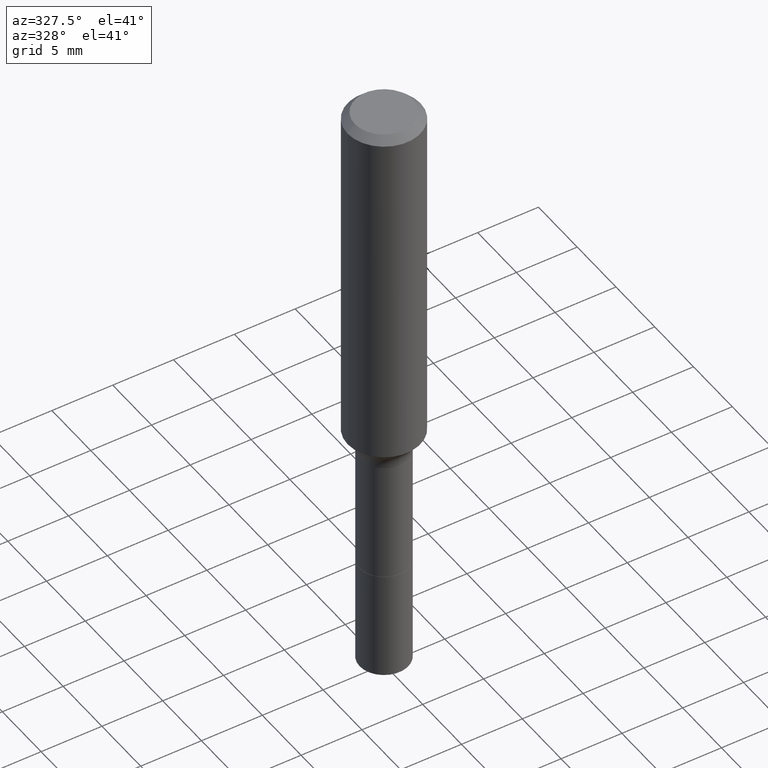
[diagram: clean part render]
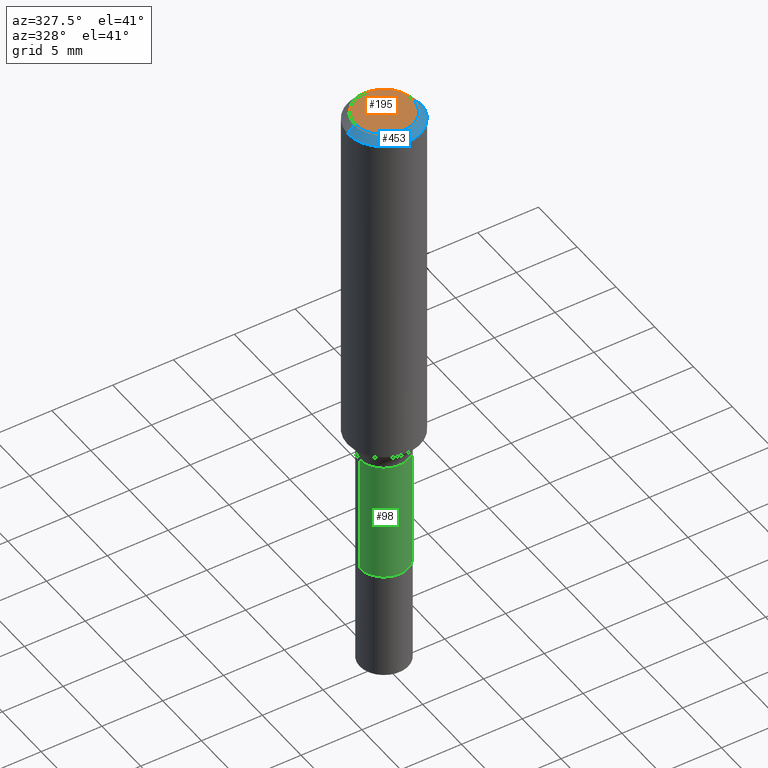
[diagram: same view with three faces highlighted in distinct colors, each labeled with its STEP entity id]
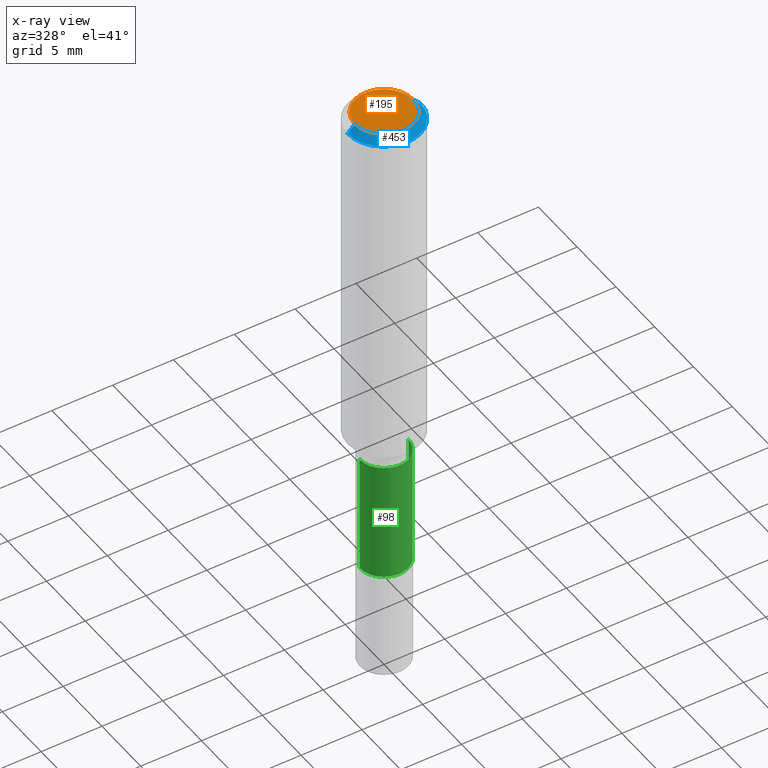
[diagram: x-ray of the same camera — body ghosted, the three highlighted faces saturated]
A machine part, auxiliary view with three faces highlighted in distinct colors.
The next image is the same camera in x-ray (body ghosted, the three faces saturated) — at least one of them is partly hidden behind the body in this view.
Their STEP definitions:

[orange] entity #195 — the highlighted planar face has unit normal (0, -0, -1).
#7 = AXIS2_PLACEMENT_3D ( 'NONE', #456, #220, #366 ) ;
#27 = CIRCLE ( 'NONE', #457, 0.09447999999999998066 ) ;
#34 = DIRECTION ( 'NONE',  ( 2.438088387897960049E-29, -3.491481338843145188E-15, -1.000000000000000000 ) ) ;
#44 = EDGE_CURVE ( 'NONE', #512, #200, #481, .T. ) ;
#50 = CARTESIAN_POINT ( 'NONE',  ( 0.09447999999999998066, -7.704367267948738690E-16, -3.085620075131172158E-17 ) ) ;
#104 = DIRECTION ( 'NONE',  ( -2.445468806185136597E-29, 3.491481338843145583E-15, 1.000000000000000000 ) ) ;
#147 = DIRECTION ( 'NONE',  ( -1.000000000000000000, 6.982962677686265922E-15, -4.876176775795935793E-29 ) ) ;
#190 = EDGE_CURVE ( 'NONE', #200, #512, #27, .T. ) ;
#191 = ORIENTED_EDGE ( 'NONE', *, *, #190, .T. ) ;
#195 = ADVANCED_FACE ( 'NONE', ( #458 ), #376, .F. ) ;
#200 = VERTEX_POINT ( 'NONE', #506 ) ;
#220 = DIRECTION ( 'NONE',  ( -2.445468806185136597E-29, 3.491481338843145583E-15, 1.000000000000000000 ) ) ;
#221 = DIRECTION ( 'NONE',  ( 1.000000000000000000, -6.982962677686267499E-15, 4.875432709231658792E-29 ) ) ;
#277 = EDGE_LOOP ( 'NONE', ( #191, #403 ) ) ;
#301 = CARTESIAN_POINT ( 'NONE',  ( 3.772893820736570314E-46, -5.386692455541008845E-32, -1.542810037565835988E-17 ) ) ;
#366 = DIRECTION ( 'NONE',  ( 1.000000000000000000, -6.982962677686267499E-15, 4.875432709231658792E-29 ) ) ;
#376 = PLANE ( 'NONE',  #380 ) ;
#380 = AXIS2_PLACEMENT_3D ( 'NONE', #301, #34, #147 ) ;
#403 = ORIENTED_EDGE ( 'NONE', *, *, #44, .T. ) ;
#421 = CARTESIAN_POINT ( 'NONE',  ( 7.545787641473140628E-46, -1.077338491108201769E-31, -3.085620075131671975E-17 ) ) ;
#456 = CARTESIAN_POINT ( 'NONE',  ( 7.545787641473140628E-46, -1.077338491108201769E-31, -3.085620075131671975E-17 ) ) ;
#457 = AXIS2_PLACEMENT_3D ( 'NONE', #421, #104, #221 ) ;
#458 = FACE_OUTER_BOUND ( 'NONE', #277, .T. ) ;
#481 = CIRCLE ( 'NONE', #7, 0.09447999999999998066 ) ;
#506 = CARTESIAN_POINT ( 'NONE',  ( -0.09447999999999998066, 7.009847083995354710E-16, -3.085620075132147757E-17 ) ) ;
#512 = VERTEX_POINT ( 'NONE', #50 ) ;

[blue] entity #453 — the highlighted conical surface has half-angle 45 deg.
#27 = CIRCLE ( 'NONE', #457, 0.09447999999999998066 ) ;
#39 = ORIENTED_EDGE ( 'NONE', *, *, #494, .T. ) ;
#41 = DIRECTION ( 'NONE',  ( 1.000000000000000000, -6.982962677686266711E-15, 0.000000000000000000 ) ) ;
#47 = DIRECTION ( 'NONE',  ( 2.445468806185136597E-29, -3.491481338843145583E-15, -1.000000000000000000 ) ) ;
#50 = CARTESIAN_POINT ( 'NONE',  ( 0.09447999999999998066, -7.704367267948738690E-16, -3.085620075131172158E-17 ) ) ;
#84 = CARTESIAN_POINT ( 'NONE',  ( 5.776197320209328408E-31, -8.246878922347560526E-17, -0.02362000000000014435 ) ) ;
#88 = AXIS2_PLACEMENT_3D ( 'NONE', #289, #47, #210 ) ;
#104 = DIRECTION ( 'NONE',  ( -2.445468806185136597E-29, 3.491481338843145583E-15, 1.000000000000000000 ) ) ;
#124 = EDGE_LOOP ( 'NONE', ( #231, #239, #233, #39 ) ) ;
#142 = CARTESIAN_POINT ( 'NONE',  ( -0.1180999999999999966, 7.422191030112725094E-16, -0.02362000000000014435 ) ) ;
#165 = VERTEX_POINT ( 'NONE', #454 ) ;
#170 = DIRECTION ( 'NONE',  ( -2.445468806185136597E-29, 3.491481338843145583E-15, 1.000000000000000000 ) ) ;
#190 = EDGE_CURVE ( 'NONE', #200, #512, #27, .T. ) ;
#200 = VERTEX_POINT ( 'NONE', #506 ) ;
#210 = DIRECTION ( 'NONE',  ( -1.000000000000000000, 6.982962677686266711E-15, 0.000000000000000000 ) ) ;
#221 = DIRECTION ( 'NONE',  ( 1.000000000000000000, -6.982962677686267499E-15, 4.875432709231658792E-29 ) ) ;
#231 = ORIENTED_EDGE ( 'NONE', *, *, #489, .F. ) ;
#233 = ORIENTED_EDGE ( 'NONE', *, *, #295, .T. ) ;
#234 = AXIS2_PLACEMENT_3D ( 'NONE', #84, #170, #41 ) ;
#239 = ORIENTED_EDGE ( 'NONE', *, *, #190, .F. ) ;
#242 = LINE ( 'NONE', #315, #446 ) ;
#278 = DIRECTION ( 'NONE',  ( 0.7071067811865460184, -7.319954787623251312E-15, -0.7071067811865490160 ) ) ;
#289 = CARTESIAN_POINT ( 'NONE',  ( 5.776197320209328408E-31, -8.246878922347560526E-17, -0.02362000000000014435 ) ) ;
#295 = EDGE_CURVE ( 'NONE', #200, #165, #309, .T. ) ;
#309 = LINE ( 'NONE', #142, #372 ) ;
#315 = CARTESIAN_POINT ( 'NONE',  ( 0.1180999999999999966, -8.926936027602933910E-16, -0.02362000000000014435 ) ) ;
#319 = CARTESIAN_POINT ( 'NONE',  ( 0.1180999999999999966, -9.071566814582237199E-16, -0.02362000000000014435 ) ) ;
#372 = VECTOR ( 'NONE', #384, 39.37007874015748143 ) ;
#378 = VERTEX_POINT ( 'NONE', #319 ) ;
#384 = DIRECTION ( 'NONE',  ( -0.7071067811865460184, 2.468850131082241283E-15, -0.7071067811865490160 ) ) ;
#415 = CONICAL_SURFACE ( 'NONE', #88, 0.1180999999999999966, 0.7853981633974461696 ) ;
#421 = CARTESIAN_POINT ( 'NONE',  ( 7.545787641473140628E-46, -1.077338491108201769E-31, -3.085620075131671975E-17 ) ) ;
#437 = FACE_OUTER_BOUND ( 'NONE', #124, .T. ) ;
#446 = VECTOR ( 'NONE', #278, 39.37007874015748143 ) ;
#453 = ADVANCED_FACE ( 'NONE', ( #437 ), #415, .T. ) ;
#454 = CARTESIAN_POINT ( 'NONE',  ( -0.1180999999999999966, -1.204080411413810673E-15, -0.02362000000000014435 ) ) ;
#457 = AXIS2_PLACEMENT_3D ( 'NONE', #421, #104, #221 ) ;
#489 = EDGE_CURVE ( 'NONE', #512, #378, #242, .T. ) ;
#493 = CIRCLE ( 'NONE', #234, 0.1180999999999999966 ) ;
#494 = EDGE_CURVE ( 'NONE', #165, #378, #493, .T. ) ;
#506 = CARTESIAN_POINT ( 'NONE',  ( -0.09447999999999998066, 7.009847083995354710E-16, -3.085620075132147757E-17 ) ) ;
#512 = VERTEX_POINT ( 'NONE', #50 ) ;

[green] entity #98 — the highlighted cylindrical surface (edge-blend (fillet) strip) has radius 2.0002 mm, axis along (-0, 0, 1).
#11 = EDGE_CURVE ( 'NONE', #435, #438, #134, .T. ) ;
#16 = EDGE_CURVE ( 'NONE', #350, #37, #96, .T. ) ;
#17 = DIRECTION ( 'NONE',  ( -2.445468806185136597E-29, 3.491481338843145583E-15, 1.000000000000000000 ) ) ;
#37 = VERTEX_POINT ( 'NONE', #99 ) ;
#51 = DIRECTION ( 'NONE',  ( -2.445468806185136597E-29, 3.491481338843145583E-15, 1.000000000000000000 ) ) ;
#69 = DIRECTION ( 'NONE',  ( 1.000000000000000000, -6.982962677686261977E-15, 0.000000000000000000 ) ) ;
#71 = VECTOR ( 'NONE', #333, 39.37007874015748143 ) ;
#94 = DIRECTION ( 'NONE',  ( 1.000000000000000000, -6.982962677686266711E-15, 0.000000000000000000 ) ) ;
#96 = LINE ( 'NONE', #411, #375 ) ;
#97 = DIRECTION ( 'NONE',  ( -2.445468806185136877E-29, 3.491481338843145188E-15, 1.000000000000000000 ) ) ;
#98 = ADVANCED_FACE ( 'NONE', ( #496 ), #216, .T. ) ;
#99 = CARTESIAN_POINT ( 'NONE',  ( -0.07874999999999994504, -4.388749523064369885E-15, -1.220499999999999918 ) ) ;
#105 = CIRCLE ( 'NONE', #188, 0.07874999999999994504 ) ;
#111 = CIRCLE ( 'NONE', #401, 0.07875000000000000056 ) ;
#134 = LINE ( 'NONE', #449, #71 ) ;
#136 = EDGE_CURVE ( 'NONE', #37, #438, #105, .T. ) ;
#178 = DIRECTION ( 'NONE',  ( 1.000000000000000000, -6.982962677686267499E-15, 4.876176775795935793E-29 ) ) ;
#188 = AXIS2_PLACEMENT_3D ( 'NONE', #329, #51, #94 ) ;
#208 = ORIENTED_EDGE ( 'NONE', *, *, #136, .F. ) ;
#216 = CYLINDRICAL_SURFACE ( 'NONE', #297, 0.07874999999999997280 ) ;
#235 = CARTESIAN_POINT ( 'NONE',  ( 0.07874999999999994504, -4.811261284925852373E-15, -1.220499999999999918 ) ) ;
#240 = EDGE_CURVE ( 'NONE', #350, #435, #111, .T. ) ;
#291 = EDGE_LOOP ( 'NONE', ( #479, #323, #514, #208 ) ) ;
#297 = AXIS2_PLACEMENT_3D ( 'NONE', #414, #17, #178 ) ;
#304 = DIRECTION ( 'NONE',  ( -2.445468806185136597E-29, 3.491481338843145583E-15, 1.000000000000000000 ) ) ;
#312 = CARTESIAN_POINT ( 'NONE',  ( -0.07875000000000000056, -4.388749523064369885E-15, -1.614000000000000101 ) ) ;
#323 = ORIENTED_EDGE ( 'NONE', *, *, #240, .T. ) ;
#329 = CARTESIAN_POINT ( 'NONE',  ( 2.984694677948959472E-29, -4.261352974058059028E-15, -1.220499999999999918 ) ) ;
#333 = DIRECTION ( 'NONE',  ( -2.445468806185136877E-29, 3.491481338843145188E-15, 1.000000000000000000 ) ) ;
#350 = VERTEX_POINT ( 'NONE', #312 ) ;
#351 = CARTESIAN_POINT ( 'NONE',  ( 3.946986653182810382E-29, -5.635250880892837556E-15, -1.614000000000000101 ) ) ;
#375 = VECTOR ( 'NONE', #97, 39.37007874015748143 ) ;
#401 = AXIS2_PLACEMENT_3D ( 'NONE', #351, #304, #69 ) ;
#411 = CARTESIAN_POINT ( 'NONE',  ( -0.07874999999999997280, 5.595524044110787031E-16, -3.873661383575737091E-30 ) ) ;
#414 = CARTESIAN_POINT ( 'NONE',  ( 0.000000000000000000, 0.000000000000000000, 0.000000000000000000 ) ) ;
#435 = VERTEX_POINT ( 'NONE', #483 ) ;
#438 = VERTEX_POINT ( 'NONE', #235 ) ;
#449 = CARTESIAN_POINT ( 'NONE',  ( 0.07874999999999997280, -5.499083108677933457E-16, 3.839989210939298316E-30 ) ) ;
#479 = ORIENTED_EDGE ( 'NONE', *, *, #16, .F. ) ;
#483 = CARTESIAN_POINT ( 'NONE',  ( 0.07875000000000000056, -6.185159191760630902E-15, -1.614000000000000101 ) ) ;
#496 = FACE_OUTER_BOUND ( 'NONE', #291, .T. ) ;
#514 = ORIENTED_EDGE ( 'NONE', *, *, #11, .T. ) ;